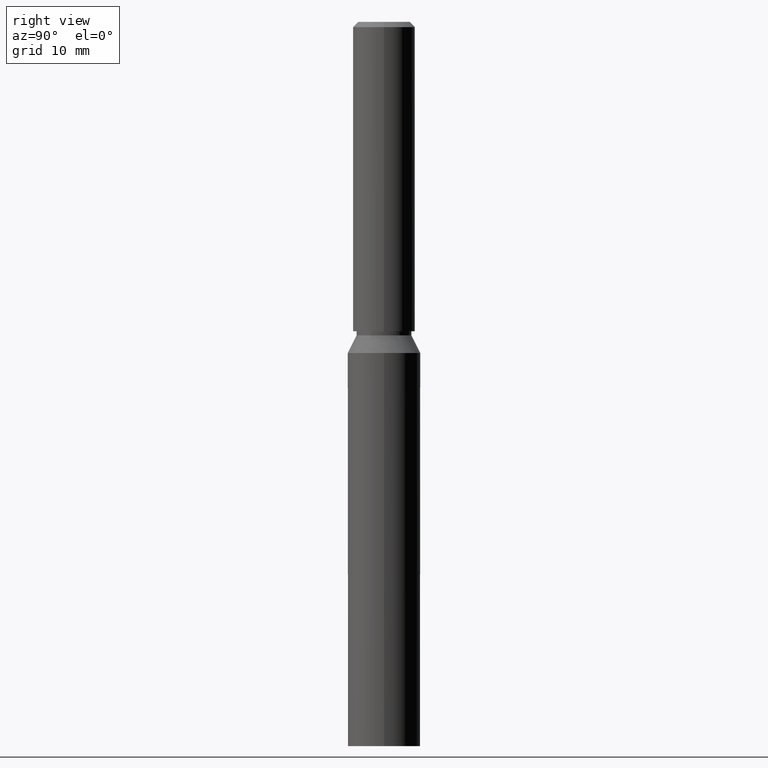
[diagram: clean part render]
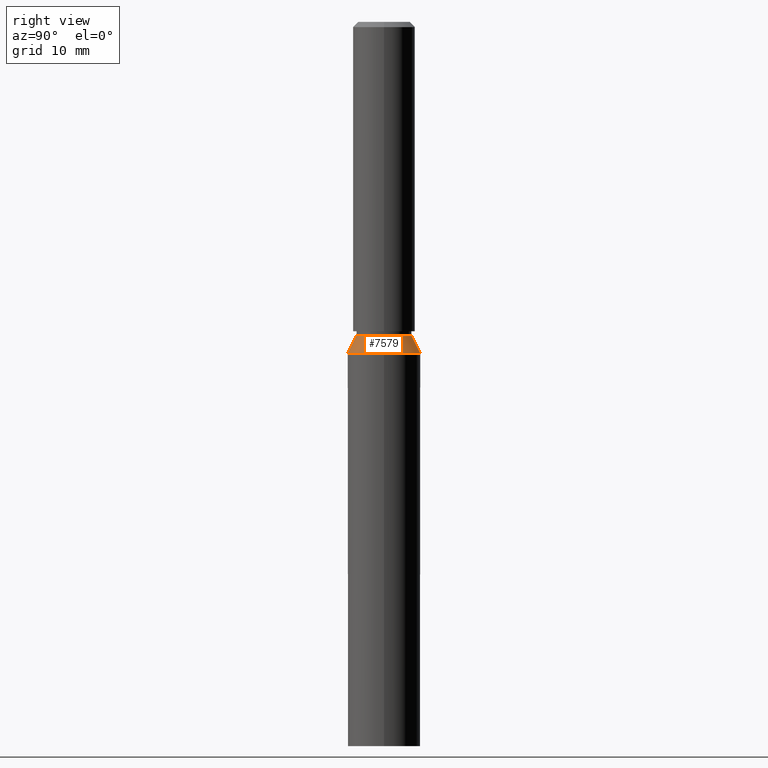
[diagram: same view with one face highlighted and labeled with its STEP entity id]
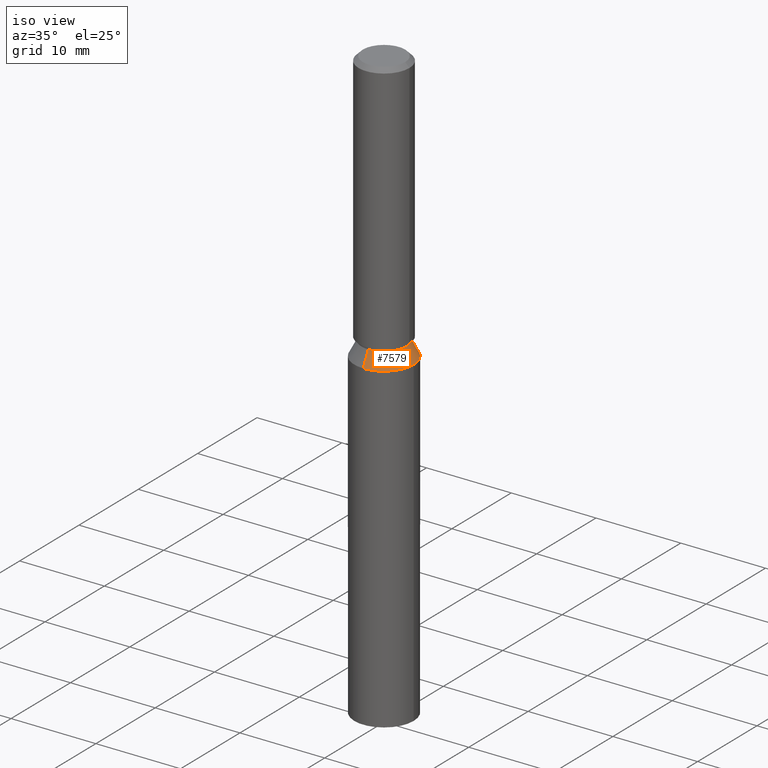
[diagram: same view with one face highlighted and labeled with its STEP entity id]
A machine part, right view. The second image highlights one B-rep face of the part: STEP entity #7579.
A second angle (iso view) of the same face is appended — the face is thin or edge-on in the first view.
In plain terms, the highlighted conical surface has half-angle 26.565 deg.
Its self-contained STEP definition (entity closure, byte-faithful):
#105 = EDGE_LOOP ( 'NONE', ( #12382, #10835, #2270, #3875, #11780 ) ) ;
#297 = DIRECTION ( 'NONE',  ( 0.0000000000000000000, 1.000000000000000000, 0.0000000000000000000 ) ) ;
#550 = CARTESIAN_POINT ( 'NONE',  ( 0.0000000000000000000, 3.500000000000004900, 38.00000000000000000 ) ) ;
#1091 = CARTESIAN_POINT ( 'NONE',  ( 0.0000000000000000000, 3.500000000000004900, 38.00000000000000000 ) ) ;
#1144 = DIRECTION ( 'NONE',  ( 5.476786982642005300E-017, -0.4472135954999562100, -0.8944271909999166300 ) ) ;
#1292 = CARTESIAN_POINT ( 'NONE',  ( 0.0000000000000000000, -7.477419753763976000E-017, 38.00000000000000000 ) ) ;
#1335 = VERTEX_POINT ( 'NONE', #6035 ) ;
#1492 = FACE_OUTER_BOUND ( 'NONE', #105, .T. ) ;
#1602 = DIRECTION ( 'NONE',  ( -0.0000000000000000000, 1.967742040464204400E-018, -1.000000000000000000 ) ) ;
#2270 = ORIENTED_EDGE ( 'NONE', *, *, #3927, .F. ) ;
#2304 = DIRECTION ( 'NONE',  ( -0.0000000000000000000, 1.967742040464204400E-018, -1.000000000000000000 ) ) ;
#2987 = CARTESIAN_POINT ( 'NONE',  ( 4.286263797015742000E-016, -3.500000000000004900, 38.00000000000000000 ) ) ;
#3380 = VERTEX_POINT ( 'NONE', #550 ) ;
#3494 = CARTESIAN_POINT ( 'NONE',  ( 3.245314017740492400E-016, -2.650000000000005200, 39.70000000000000300 ) ) ;
#3669 = CONICAL_SURFACE ( 'NONE', #11508, 3.500000000000004900, 0.4636476090008042100 ) ;
#3875 = ORIENTED_EDGE ( 'NONE', *, *, #9853, .F. ) ;
#3927 = EDGE_CURVE ( 'NONE', #8190, #1335, #10797, .T. ) ;
#4403 = CIRCLE ( 'NONE', #5783, 3.500000000000004900 ) ;
#4863 = VECTOR ( 'NONE', #1144, 1000.000000000000100 ) ;
#5113 = DIRECTION ( 'NONE',  ( -0.0000000000000000000, 1.967742040464204400E-018, -1.000000000000000000 ) ) ;
#5158 = CARTESIAN_POINT ( 'NONE',  ( 0.0000000000000000000, -7.477419753763976000E-017, 38.00000000000000000 ) ) ;
#5381 = CARTESIAN_POINT ( 'NONE',  ( 0.0000000000000000000, -7.811935900642893000E-017, 39.70000000000000300 ) ) ;
#5783 = AXIS2_PLACEMENT_3D ( 'NONE', #5158, #5113, #6124 ) ;
#6035 = CARTESIAN_POINT ( 'NONE',  ( 4.286263797015742000E-016, -3.500000000000004900, 38.00000000000000000 ) ) ;
#6124 = DIRECTION ( 'NONE',  ( 0.0000000000000000000, 1.000000000000000000, 0.0000000000000000000 ) ) ;
#7018 = DIRECTION ( 'NONE',  ( 0.0000000000000000000, 0.4472135954999562100, -0.8944271909999166300 ) ) ;
#7579 = ADVANCED_FACE ( 'NONE', ( #1492 ), #3669, .T. ) ;
#7589 = VECTOR ( 'NONE', #7018, 1000.000000000000100 ) ;
#7791 = VERTEX_POINT ( 'NONE', #3494 ) ;
#8190 = VERTEX_POINT ( 'NONE', #12811 ) ;
#8236 = DIRECTION ( 'NONE',  ( 0.0000000000000000000, 1.000000000000000000, 0.0000000000000000000 ) ) ;
#8301 = EDGE_CURVE ( 'NONE', #11865, #3380, #9145, .T. ) ;
#8796 = CIRCLE ( 'NONE', #12635, 2.650000000000005200 ) ;
#9083 = CARTESIAN_POINT ( 'NONE',  ( 0.0000000000000000000, 2.650000000000005200, 39.70000000000000300 ) ) ;
#9145 = LINE ( 'NONE', #1091, #7589 ) ;
#9750 = AXIS2_PLACEMENT_3D ( 'NONE', #1292, #12290, #8236 ) ;
#9853 = EDGE_CURVE ( 'NONE', #3380, #8190, #4403, .T. ) ;
#10612 = DIRECTION ( 'NONE',  ( 0.0000000000000000000, 1.000000000000000000, 0.0000000000000000000 ) ) ;
#10797 = CIRCLE ( 'NONE', #9750, 3.500000000000004900 ) ;
#10835 = ORIENTED_EDGE ( 'NONE', *, *, #12311, .T. ) ;
#11508 = AXIS2_PLACEMENT_3D ( 'NONE', #12435, #1602, #10612 ) ;
#11780 = ORIENTED_EDGE ( 'NONE', *, *, #8301, .F. ) ;
#11865 = VERTEX_POINT ( 'NONE', #9083 ) ;
#12247 = LINE ( 'NONE', #2987, #4863 ) ;
#12290 = DIRECTION ( 'NONE',  ( -0.0000000000000000000, 1.967742040464204400E-018, -1.000000000000000000 ) ) ;
#12311 = EDGE_CURVE ( 'NONE', #7791, #1335, #12247, .T. ) ;
#12382 = ORIENTED_EDGE ( 'NONE', *, *, #12730, .T. ) ;
#12435 = CARTESIAN_POINT ( 'NONE',  ( 0.0000000000000000000, -7.477419753763976000E-017, 38.00000000000000000 ) ) ;
#12635 = AXIS2_PLACEMENT_3D ( 'NONE', #5381, #2304, #297 ) ;
#12730 = EDGE_CURVE ( 'NONE', #11865, #7791, #8796, .T. ) ;
#12811 = CARTESIAN_POINT ( 'NONE',  ( 3.500000000000004900, 4.286263797015743000E-016, 38.00000000000000000 ) ) ;